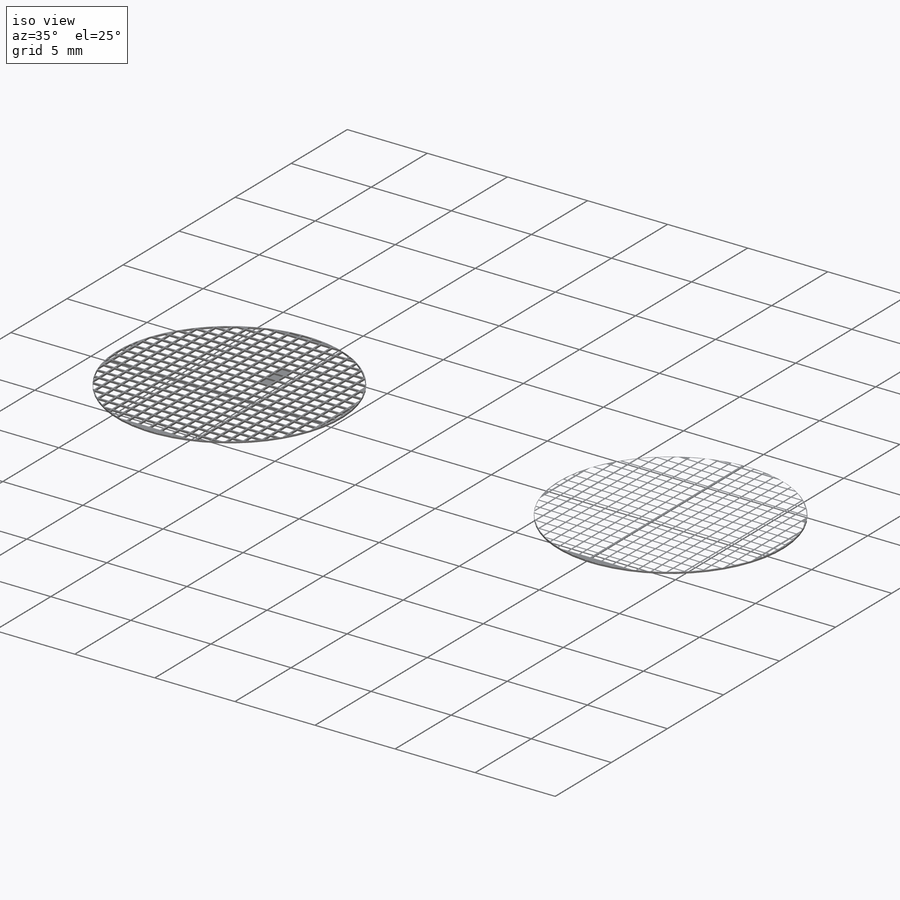
[diagram: iso view]
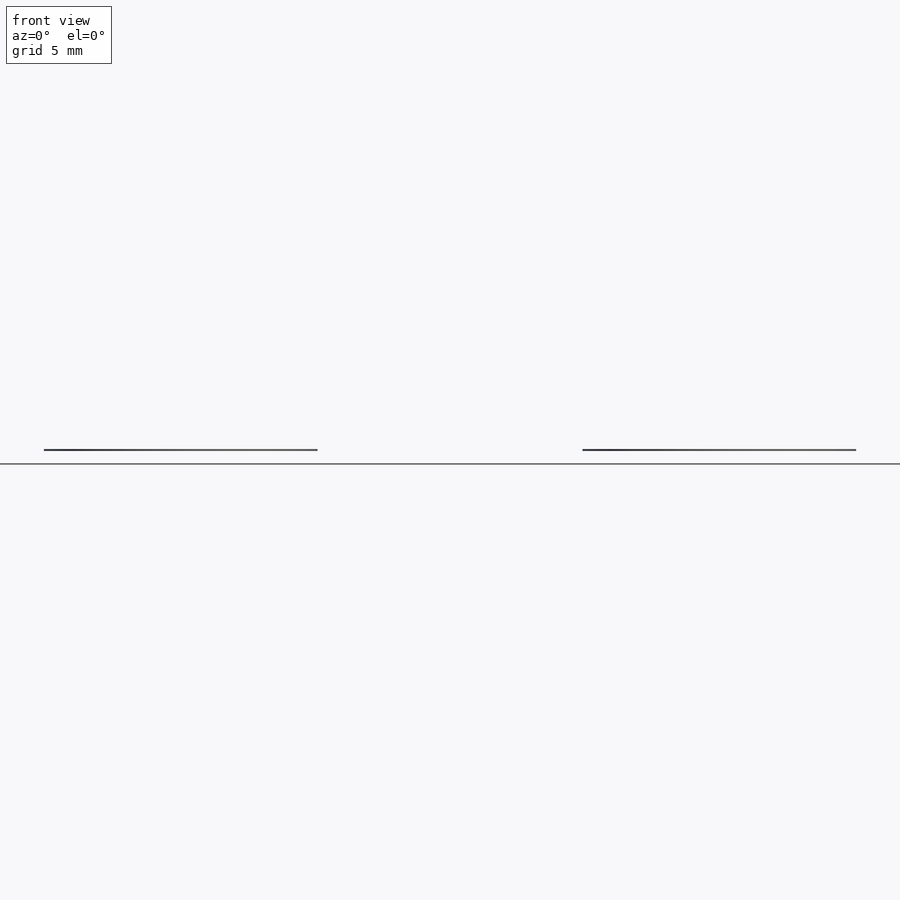
[diagram: front view]
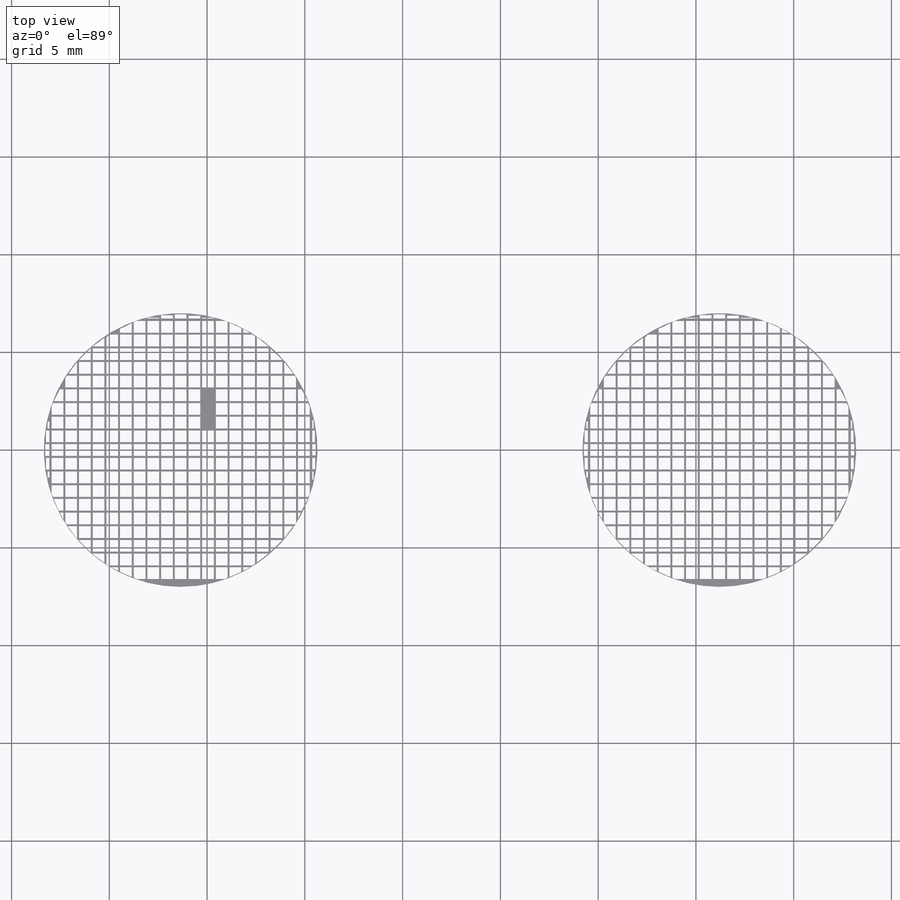
[diagram: top view]
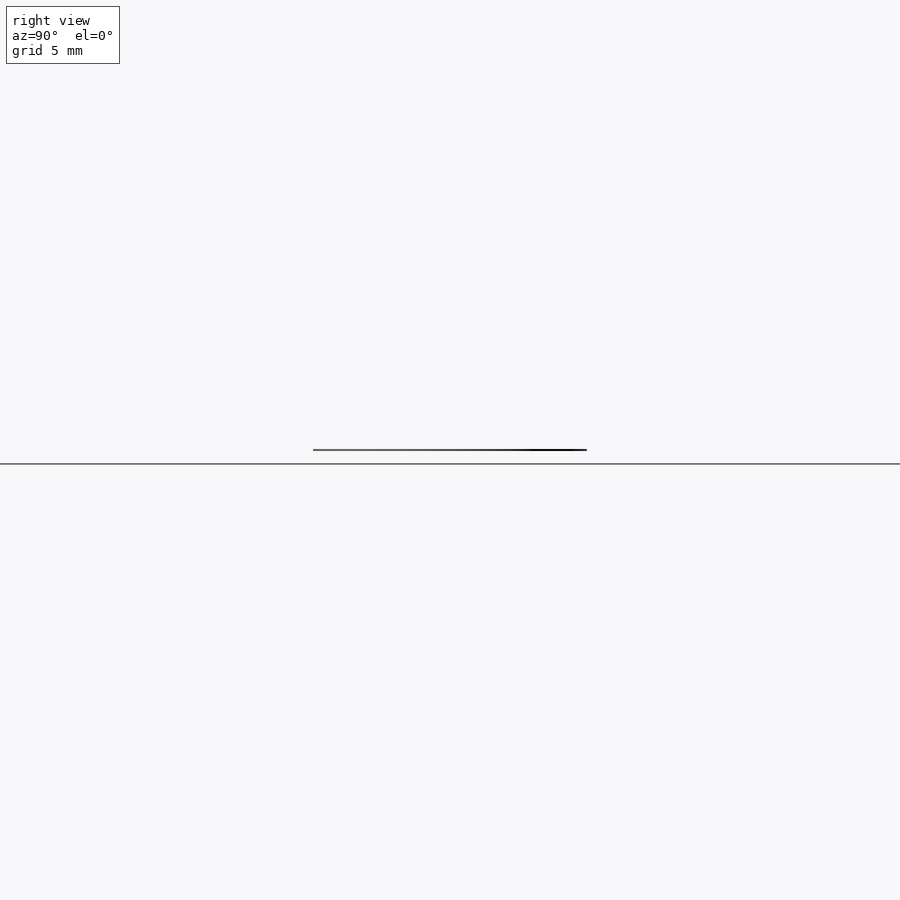
[diagram: right view]
SOLIDWORKS PART (.sldprt)
format: sldprt  version: not decoded by parser v0  size: 3,980,288 bytes
history: native  units: mm
features: sketch x28, extrude x19, fillet x10, cut_extrude x8, plane x3, chamfer x2, material x1 (+9 scaffold rows collapsed)
feature tree (80):
  scaffold x9  (default folders/planes/origin — collapsed)
  material  "Material <sin especificar>"
  plane  "Alzado"
  plane  "Planta"
  plane  "Vista lateral"
  sketch  "Croquis1"  dims[D1=20.0mm]
  extrude  "Saliente-Extruir1"  Depth=1.4mm
  sketch  "Croquis2"  dims[D1=10.5mm]
  extrude  "Saliente-Extruir2"  Depth=11.7mm
  sketch  "Croquis3"  dims[D1=4.3mm]
  cut_extrude  "Cortar-Extruir1"  Depth=0.02mm
  sketch  "Croquis4"
  extrude  "Saliente-Extruir3"  Depth=0.07mm
  fillet  "Redondeo1"  Radius=2mm
  fillet  "Redondeo2"  Radius=2mm
  fillet  "Redondeo3"  Radius=2mm
  sketch  "Croquis5"
  extrude  "Saliente-Extruir4"  Depth=1.9mm
  fillet  "Redondeo5"  Radius=1.5mm
  sketch  "Croquis6"  dims[D1=0.8mm]
  extrude  "Saliente-Extruir5"  Depth=1.2mm
  fillet  "Redondeo9"  Radius=0.5mm
  sketch  "Croquis7"  dims[D1=~6.614496mm]
  cut_extrude  "Cortar-Extruir4"  Depth=7mm
  sketch  "Croquis10"  dims[D1=~4.775289mm]
  extrude  "Saliente-Extruir6"  Depth=0.5mm
  sketch  "Croquis11"  dims[D1=~3.378484mm]
  extrude  "Saliente-Extruir7"  Depth=1.5mm
  sketch  "Croquis12"  dims[D1=~1.268285mm]
  cut_extrude  "Cortar-Extruir5"  Depth=1.5mm
  chamfer  "Chaflán2"  Distance=2.5mm Angle=20deg
  sketch  "Croquis13"
  extrude  "Saliente-Extruir8"  Depth=1.3mm
  sketch  "Croquis14"
  extrude  "Saliente-Extruir9"  Depth=1.3mm
  fillet  "Redondeo11"  Radius=0.5mm
  sketch  "Croquis19"  dims[D1=0.4mm]
  cut_extrude  "Cortar-Extruir9"  Depth=2mm
  sketch  "Croquis20"  dims[D1=0.7mm]
  extrude  "Saliente-Extruir11"  Depth=0.7mm
  sketch  "Croquis21"
  extrude  "Saliente-Extruir12"  Depth=0.7mm
  fillet  "Redondeo12"  Radius=0.1mm
  fillet  "Redondeo13"  Radius=0.1mm
  sketch  "Croquis22"  dims[D1=1.2mm]
  extrude  "Saliente-Extruir13"  Depth=0.5mm
  sketch  "Croquis23"
  cut_extrude  "Cortar-Extruir10"  Depth=0.2mm
  sketch  "Croquis24"
  cut_extrude  "Cortar-Extruir11"  Depth=0.2mm
  sketch  "Croquis25"
  sketch  "Croquis26"
  extrude  "Saliente-Extruir15"  Depth=0.025mm
  sketch  "Croquis27"
  extrude  "Saliente-Extruir16"  Depth=0.025mm
  sketch  "Croquis28"
  extrude  "Saliente-Extruir17"  Depth=0.025mm
  sketch  "Croquis29"
  cut_extrude  "Cortar-Extruir13"  Depth=1mm
  sketch  "Croquis30"
  extrude  "Saliente-Extruir20"  Depth=0.1mm
  sketch  "Croquis31"  dims[c1.D1=0.6mm c2.D1=8.0 c2.D2=7.0 c2.D3=6.0 c2.D4=9.0 c2.D5=8.0 c2.D6=4.0 c2.D7=7.0 c2.D8=8.0 c2.D9=6.0 c2.D10=4.0 c2.D11=5.0 c2.D12=8.0 c2.D13=8.0 c2.D14=7.0 c2.D15=7.0 c2.D16=6.0 c2.D17=6.0 c2.D18=4.0 c2.D19=4.0 c2.D20=8.0 c2.D21=6.0 c2.D22=6.0 c2.D23=2.0 c2.D24=2.0]
  cut_extrude  "Cortar-Extruir15"  Depth=0.1mm
  sketch  "Croquis33"
  extrude  "Saliente-Extruir22"  Depth=2mm
  sketch  "Croquis34"  dims[D1=0.5mm]
  extrude  "Saliente-Extruir23"  Depth=1mm
  sketch  "Croquis35"  dims[D1=6.0mm]
  extrude  "Saliente-Extruir24"  Depth=0.5mm
  fillet  "Redondeo14"  Radius=0.4mm
  fillet  "Redondeo15"  Radius=0.2mm
  chamfer  "Chaflán3"  Distance=0.3mm Angle=45deg
decode coverage: 53 of 67 modeling features carry decoded parameters
note: ~ marks probable driven/reference dimensions
note: suppression state not decoded; provenance and decode notes live in map.json
